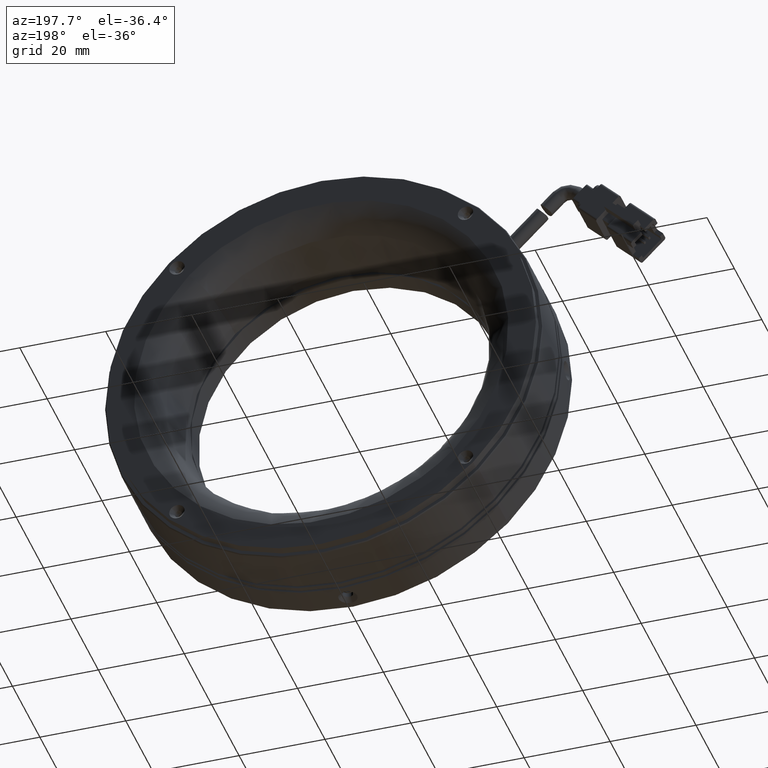
[diagram: clean part render]
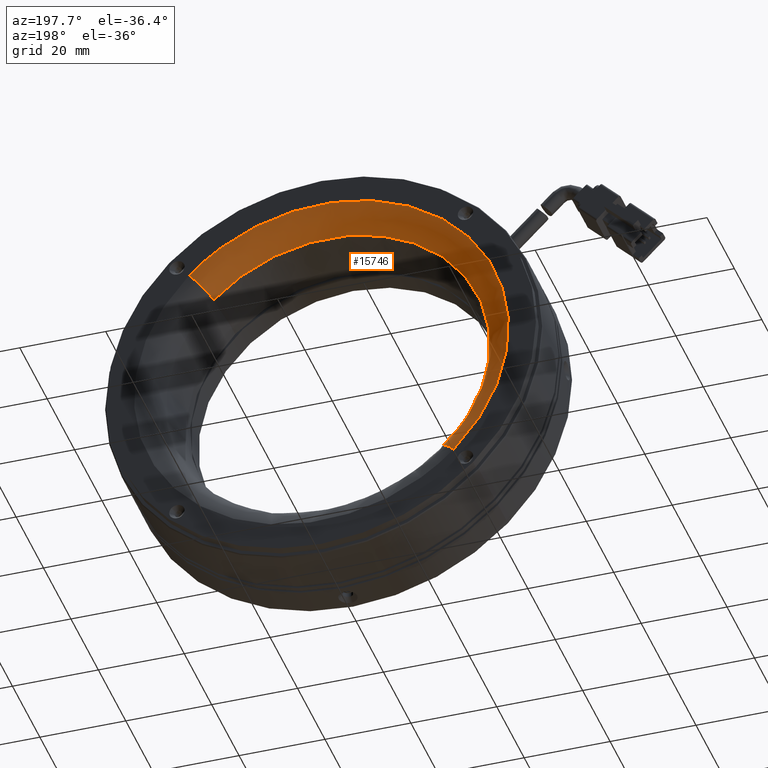
[diagram: same view with one face highlighted and labeled with its STEP entity id]
A machine part, auxiliary view. The second image highlights one B-rep face of the part: STEP entity #15746.
In plain terms, the highlighted face is a freeform B-spline surface patch.
Its self-contained STEP definition (entity closure, byte-faithful):
#1882 = DIRECTION ( 'NONE',  ( -0.7071067811865483500, 0.0000000000000000000, -0.7071067811865465700 ) ) ;
#2001 = DIRECTION ( 'NONE',  ( 0.7071067811865464600, -1.045514168352553600E-021, -0.7071067811865485700 ) ) ;
#2121 = CARTESIAN_POINT ( 'NONE',  ( -30.82622306972614700, 19.40714717451851000, -30.82622306972638900 ) ) ;
#2445 = ORIENTED_EDGE ( 'NONE', *, *, #54898, .T. ) ;
#2588 =( BOUNDED_CURVE ( )  B_SPLINE_CURVE ( 3, ( #78199, #63243, #49255, #5734 ),
 .UNSPECIFIED., .F., .F. ) 
 B_SPLINE_CURVE_WITH_KNOTS ( ( 4, 4 ),
 ( 0.0000000000000000000, 1.000000000000000000 ),
 .UNSPECIFIED. ) 
 CURVE ( )  GEOMETRIC_REPRESENTATION_ITEM ( )  RATIONAL_B_SPLINE_CURVE ( ( 1.000000000000000000, 0.3333333333333333700, 0.3333333333333333700, 1.000000000000000000 ) ) 
 REPRESENTATION_ITEM ( '' )  );
#4275 = EDGE_CURVE ( 'NONE', #47999, #15869, #8682, .T. ) ;
#5731 = CARTESIAN_POINT ( 'NONE',  ( 26.64803762780669100, 20.44903624052007300, 26.64803762780628200 ) ) ;
#5734 = CARTESIAN_POINT ( 'NONE',  ( 30.82622306972681900, 25.40714717451851000, 30.82622306972639200 ) ) ;
#8682 = CIRCLE ( 'NONE', #55396, 6.000000000000000900 ) ;
#12677 = CARTESIAN_POINT ( 'NONE',  ( -30.82622306972594800, 25.40714717451851000, 92.47866920917935800 ) ) ;
#13014 = CARTESIAN_POINT ( 'NONE',  ( -79.94411288341858300, 20.44903624052007300, 26.64803762780644200 ) ) ;
#14939 = CIRCLE ( 'NONE', #84269, 37.68601622387225100 ) ;
#15746 = ADVANCED_FACE ( 'NONE', ( #81684 ), #42866, .T. ) ;
#15869 = VERTEX_POINT ( 'NONE', #79760 ) ;
#18685 = ORIENTED_EDGE ( 'NONE', *, *, #4275, .F. ) ;
#19018 = CARTESIAN_POINT ( 'NONE',  ( 30.82622306972681500, 19.40714717451851000, 30.82622306972639200 ) ) ;
#19302 = CARTESIAN_POINT ( 'NONE',  ( 3.317160594367525600E-013, 20.44903624052007300, 2.765983579064349600E-015 ) ) ;
#20054 = CARTESIAN_POINT ( 'NONE',  ( -30.82622306972615800, 25.40714717451851400, -30.82622306972638500 ) ) ;
#20824 = AXIS2_PLACEMENT_3D ( 'NONE', #19018, #69822, #26358 ) ;
#22705 = VERTEX_POINT ( 'NONE', #62690 ) ;
#26358 = DIRECTION ( 'NONE',  ( 0.7071067811865486800, 0.0000000000000000000, 0.7071067811865463500 ) ) ;
#26631 = DIRECTION ( 'NONE',  ( -0.7071067811865485700, 0.0000000000000000000, -0.7071067811865465700 ) ) ;
#27371 = CARTESIAN_POINT ( 'NONE',  ( -28.67217794054088000, 25.40714717451850600, 86.01653382162410800 ) ) ;
#34676 = CARTESIAN_POINT ( 'NONE',  ( -28.67217794054107600, 25.40714717451851000, -28.67217794054130300 ) ) ;
#42001 = CARTESIAN_POINT ( 'NONE',  ( -27.02208363910116200, 23.44903624052008300, 81.06625091730488500 ) ) ;
#42866 =( BOUNDED_SURFACE ( )  B_SPLINE_SURFACE ( 3, 3, ( 
 ( #56197, #12677, #63554, #20054 ),
 ( #70862, #27371, #78196, #34676 ),
 ( #85460, #42001, #92773, #49253 ),
 ( #5731, #56527, #13014, #63861 ) ),
 .UNSPECIFIED., .F., .F., .F. ) 
 B_SPLINE_SURFACE_WITH_KNOTS ( ( 4, 4 ),
 ( 4, 4 ),
 ( 0.0000000000000000000, 1.000000000000000000 ),
 ( 0.0000000000000000000, 1.000000000000000000 ),
 .UNSPECIFIED. ) 
 GEOMETRIC_REPRESENTATION_ITEM ( )  RATIONAL_B_SPLINE_SURFACE ( (
 ( 1.000000000000000000, 0.3333333333333334300, 0.3333333333333334300, 1.000000000000000000),
 ( 0.8440296287459846400, 0.2813432095819949400, 0.2813432095819949400, 0.8440296287459846400),
 ( 0.8440296287459846400, 0.2813432095819949400, 0.2813432095819949400, 0.8440296287459846400),
 ( 1.000000000000000000, 0.3333333333333334300, 0.3333333333333334300, 1.000000000000000000) ) ) 
 REPRESENTATION_ITEM ( '' )  SURFACE ( )  );
#47999 = VERTEX_POINT ( 'NONE', #57743 ) ;
#49253 = CARTESIAN_POINT ( 'NONE',  ( -27.02208363910133600, 23.44903624052008000, -27.02208363910157700 ) ) ;
#49255 = CARTESIAN_POINT ( 'NONE',  ( -30.82622306972595500, 25.40714717451852100, 92.47866920917935800 ) ) ;
#51218 = EDGE_CURVE ( 'NONE', #22705, #15869, #14939, .T. ) ;
#54898 = EDGE_CURVE ( 'NONE', #81598, #22705, #65940, .T. ) ;
#54932 = EDGE_LOOP ( 'NONE', ( #79935, #2445, #85509, #18685 ) ) ;
#55396 = AXIS2_PLACEMENT_3D ( 'NONE', #2121, #2001, #1882 ) ;
#56197 = CARTESIAN_POINT ( 'NONE',  ( 30.82622306972681900, 25.40714717451851400, 30.82622306972639600 ) ) ;
#56527 = CARTESIAN_POINT ( 'NONE',  ( -26.64803762780585200, 20.44903624052007300, 79.94411288341899500 ) ) ;
#57743 = CARTESIAN_POINT ( 'NONE',  ( -30.82622306972614700, 25.40714717451851000, -30.82622306972638900 ) ) ;
#62690 = CARTESIAN_POINT ( 'NONE',  ( 26.64803762780669100, 20.44903624052007300, 26.64803762780628200 ) ) ;
#63152 = CARTESIAN_POINT ( 'NONE',  ( 30.82622306972681900, 25.40714717451851000, 30.82622306972639200 ) ) ;
#63243 = CARTESIAN_POINT ( 'NONE',  ( -92.47866920917891800, 25.40714717451852100, 30.82622306972657400 ) ) ;
#63554 = CARTESIAN_POINT ( 'NONE',  ( -92.47866920917891800, 25.40714717451851000, 30.82622306972658800 ) ) ;
#63861 = CARTESIAN_POINT ( 'NONE',  ( -26.64803762780603300, 20.44903624052007300, -26.64803762780627100 ) ) ;
#65940 = CIRCLE ( 'NONE', #20824, 5.999999999999998200 ) ;
#69822 = DIRECTION ( 'NONE',  ( -0.7071067811865463500, 1.045514168352555100E-021, 0.7071067811865486800 ) ) ;
#70020 = EDGE_CURVE ( 'NONE', #47999, #81598, #2588, .T. ) ;
#70112 = DIRECTION ( 'NONE',  ( 5.593399160027876600E-020, -1.000000000000000000, 5.741257191681600800E-020 ) ) ;
#70862 = CARTESIAN_POINT ( 'NONE',  ( 28.67217794054173700, 25.40714717451851000, 28.67217794054131400 ) ) ;
#78196 = CARTESIAN_POINT ( 'NONE',  ( -86.01653382162366800, 25.40714717451850600, 28.67217794054149800 ) ) ;
#78199 = CARTESIAN_POINT ( 'NONE',  ( -30.82622306972614700, 25.40714717451851000, -30.82622306972638900 ) ) ;
#79760 = CARTESIAN_POINT ( 'NONE',  ( -26.64803762780602300, 20.44903624052007300, -26.64803762780628200 ) ) ;
#79935 = ORIENTED_EDGE ( 'NONE', *, *, #70020, .T. ) ;
#81598 = VERTEX_POINT ( 'NONE', #63152 ) ;
#81684 = FACE_OUTER_BOUND ( 'NONE', #54932, .T. ) ;
#84269 = AXIS2_PLACEMENT_3D ( 'NONE', #19302, #70112, #26631 ) ;
#85460 = CARTESIAN_POINT ( 'NONE',  ( 27.02208363910200000, 23.44903624052008000, 27.02208363910159200 ) ) ;
#85509 = ORIENTED_EDGE ( 'NONE', *, *, #51218, .T. ) ;
#92773 = CARTESIAN_POINT ( 'NONE',  ( -81.06625091730448700, 23.44903624052008300, 27.02208363910174800 ) ) ;